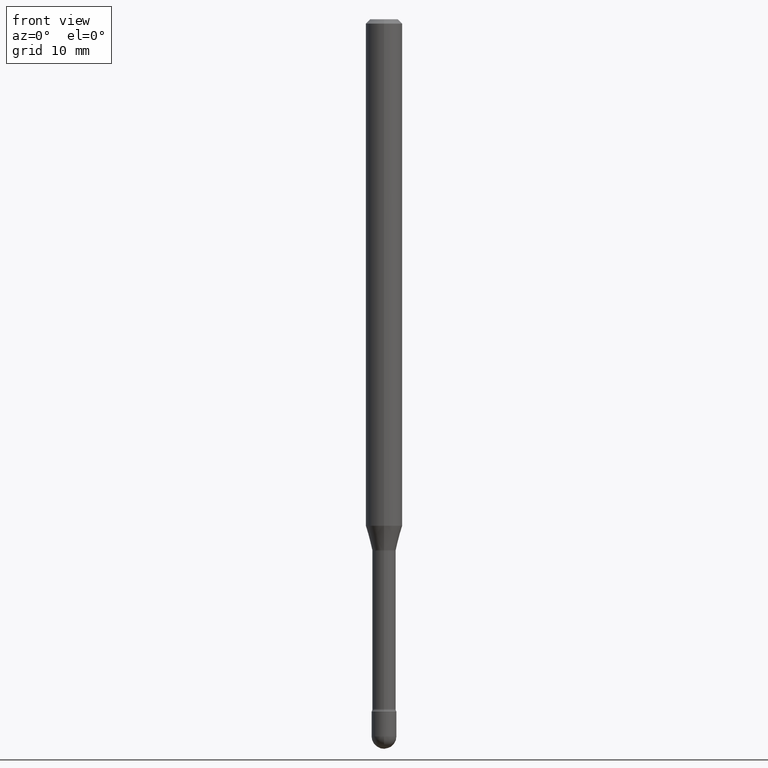
[diagram: clean part render]
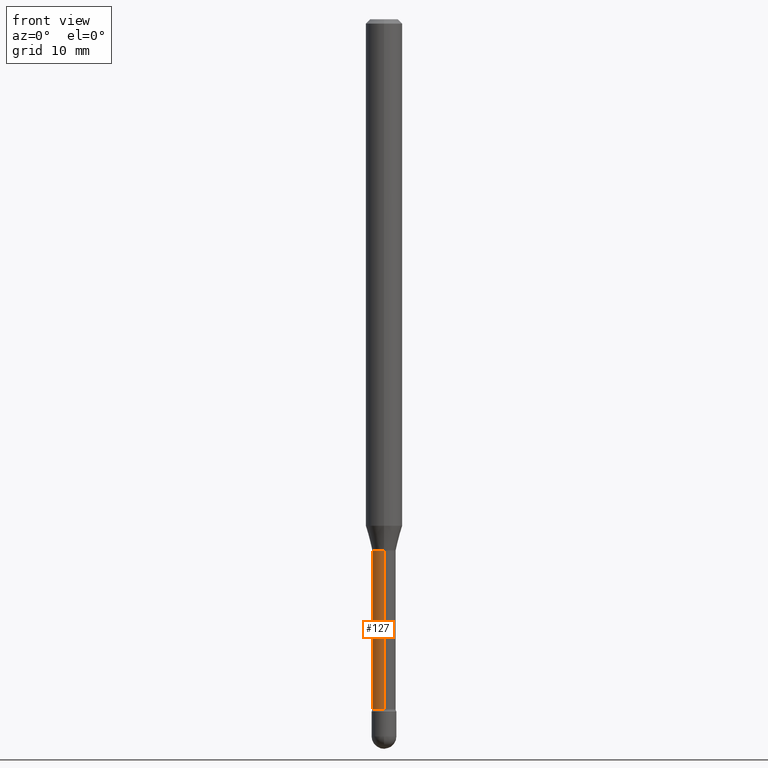
[diagram: same view with one face highlighted and labeled with its STEP entity id]
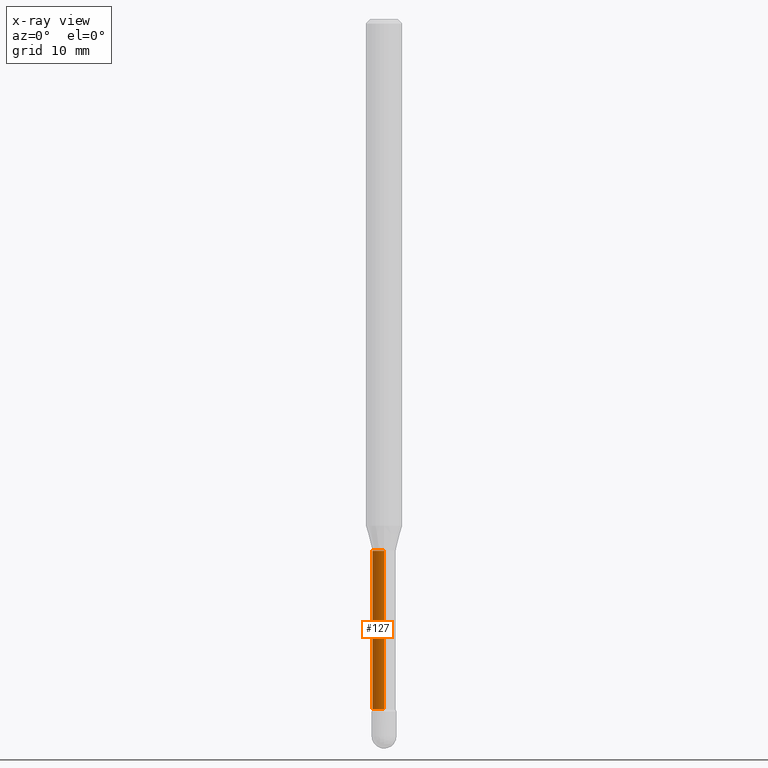
[diagram: x-ray of the same camera — body ghosted, the highlighted face saturated]
A machine part, front view. The second image highlights one B-rep face of the part: STEP entity #127.
The next image is the same camera in x-ray: the body ghosted, the highlighted face saturated — about 0% of this face is hidden behind the body in this view.
In plain terms, the highlighted cylindrical surface (edge-blend (fillet) strip) has radius 1.0147 mm, axis along (-0, 0, 1).
Its self-contained STEP definition (entity closure, byte-faithful):
#3 = ORIENTED_EDGE ( 'NONE', *, *, #367, .T. ) ;
#13 = LINE ( 'NONE', #171, #104 ) ;
#48 = DIRECTION ( 'NONE',  ( -2.445504814483899766E-29, 3.491429772909851557E-15, 1.000000000000000000 ) ) ;
#51 = ORIENTED_EDGE ( 'NONE', *, *, #301, .F. ) ;
#56 = VERTEX_POINT ( 'NONE', #285 ) ;
#61 = CARTESIAN_POINT ( 'NONE',  ( -1.169113584055446105E-44, 1.669184350826100908E-30, 4.780733988912460139E-16 ) ) ;
#103 = AXIS2_PLACEMENT_3D ( 'NONE', #265, #482, #529 ) ;
#104 = VECTOR ( 'NONE', #344, 39.37007874015748143 ) ;
#121 = EDGE_LOOP ( 'NONE', ( #356, #239, #3, #51 ) ) ;
#123 = AXIS2_PLACEMENT_3D ( 'NONE', #61, #311, #483 ) ;
#127 = ADVANCED_FACE ( 'NONE', ( #142 ), #146, .T. ) ;
#142 = FACE_OUTER_BOUND ( 'NONE', #121, .T. ) ;
#146 = CYLINDRICAL_SURFACE ( 'NONE', #123, 0.03995000000000004103 ) ;
#148 = AXIS2_PLACEMENT_3D ( 'NONE', #430, #48, #389 ) ;
#155 = VECTOR ( 'NONE', #242, 39.37007874015748143 ) ;
#168 = CARTESIAN_POINT ( 'NONE',  ( -2.789693589735218069E-16, -0.03995000000000637624, -1.821974787463811030 ) ) ;
#171 = CARTESIAN_POINT ( 'NONE',  ( -2.789693589735665748E-16, -0.03995000000000004103, 6.175560183189947487E-16 ) ) ;
#188 = EDGE_CURVE ( 'NONE', #56, #492, #398, .T. ) ;
#239 = ORIENTED_EDGE ( 'NONE', *, *, #310, .T. ) ;
#242 = DIRECTION ( 'NONE',  ( -2.445504814483899766E-29, 3.491429772909851557E-15, 1.000000000000000000 ) ) ;
#265 = CARTESIAN_POINT ( 'NONE',  ( 4.455648114611029959E-29, -6.361297018442249772E-15, -1.821974787463811252 ) ) ;
#285 = CARTESIAN_POINT ( 'NONE',  ( 2.929212428171594149E-16, 0.03994999999999181151, -2.363633549139569912 ) ) ;
#301 = EDGE_CURVE ( 'NONE', #492, #469, #439, .T. ) ;
#310 = EDGE_CURVE ( 'NONE', #56, #471, #383, .T. ) ;
#311 = DIRECTION ( 'NONE',  ( -2.445504814483899766E-29, 3.491429772909851557E-15, 1.000000000000000000 ) ) ;
#344 = DIRECTION ( 'NONE',  ( -2.445504814483899766E-29, 3.491429772909851557E-15, 1.000000000000000000 ) ) ;
#356 = ORIENTED_EDGE ( 'NONE', *, *, #188, .F. ) ;
#367 = EDGE_CURVE ( 'NONE', #471, #469, #13, .T. ) ;
#383 = CIRCLE ( 'NONE', #148, 0.03995000000000006879 ) ;
#389 = DIRECTION ( 'NONE',  ( -6.982962677686265133E-15, -1.000000000000000000, 6.838167693777868349E-15 ) ) ;
#398 = LINE ( 'NONE', #485, #155 ) ;
#430 = CARTESIAN_POINT ( 'NONE',  ( 5.780277224096484704E-29, -8.252460545714473585E-15, -2.363633549139569467 ) ) ;
#439 = CIRCLE ( 'NONE', #103, 0.03995000000000001328 ) ;
#469 = VERTEX_POINT ( 'NONE', #168 ) ;
#471 = VERTEX_POINT ( 'NONE', #516 ) ;
#482 = DIRECTION ( 'NONE',  ( -2.445504814483899766E-29, 3.491429772909851557E-15, 1.000000000000000000 ) ) ;
#483 = DIRECTION ( 'NONE',  ( -6.982962677686265133E-15, -1.000000000000000000, 3.491429772909850768E-15 ) ) ;
#485 = CARTESIAN_POINT ( 'NONE',  ( 2.838618229361602665E-16, 0.03995000000000004103, 3.385907794634973778E-16 ) ) ;
#492 = VERTEX_POINT ( 'NONE', #519 ) ;
#516 = CARTESIAN_POINT ( 'NONE',  ( -2.789693589735089879E-16, -0.03995000000000831913, -2.363633549139569023 ) ) ;
#519 = CARTESIAN_POINT ( 'NONE',  ( 2.838618229362180999E-16, 0.03994999999999365725, -1.821974787463811474 ) ) ;
#529 = DIRECTION ( 'NONE',  ( -6.982962677686265922E-15, -1.000000000000000000, 6.838167693777877816E-15 ) ) ;